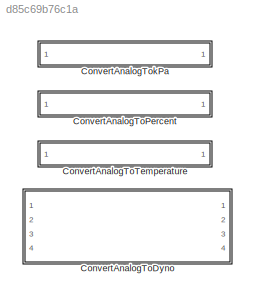
MODEL slx_d85c69b76c1a
KIND library
CONFIG AbsTol = auto
CONFIG EnableMultiTasking = off
CONFIG FixedStep = auto
CONFIG MaxStep = auto
CONFIG MinStep = auto
CONFIG RelTol = 1e-3
CONFIG SampleTimeConstraint = Unconstrained
CONFIG Solver = VariableStepAuto
CONFIG SolverName = VariableStepAuto
CONFIG StartTime = 0.0
CONFIG StopTime = 10.0
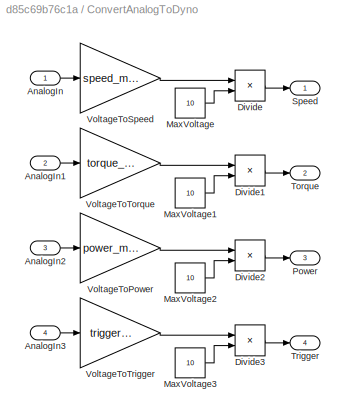
BLOCK [SubSystem] ConvertAnalogToDyno
  Ports = [4, 4]
  RequestExecContextInheritance = off
  Variant = off
BLOCK [Inport] ConvertAnalogToDyno/AnalogIn
  IconDisplay = Port number
BLOCK [Inport] ConvertAnalogToDyno/AnalogIn1
  IconDisplay = Port number
  Port = 2
BLOCK [Inport] ConvertAnalogToDyno/AnalogIn2
  IconDisplay = Port number
  Port = 3
BLOCK [Inport] ConvertAnalogToDyno/AnalogIn3
  IconDisplay = Port number
  Port = 4
BLOCK [Product] ConvertAnalogToDyno/Divide
  InputSameDT = off
  Inputs = */
  OutDataTypeStr = Inherit: Inherit via internal rule
  Ports = [2, 1]
  RndMeth = Floor
  SaturateOnIntegerOverflow = off
BLOCK [Product] ConvertAnalogToDyno/Divide1
  InputSameDT = off
  Inputs = */
  OutDataTypeStr = Inherit: Inherit via internal rule
  Ports = [2, 1]
  RndMeth = Floor
  SaturateOnIntegerOverflow = off
BLOCK [Product] ConvertAnalogToDyno/Divide2
  InputSameDT = off
  Inputs = */
  OutDataTypeStr = Inherit: Inherit via internal rule
  Ports = [2, 1]
  RndMeth = Floor
  SaturateOnIntegerOverflow = off
BLOCK [Product] ConvertAnalogToDyno/Divide3
  InputSameDT = off
  Inputs = */
  OutDataTypeStr = Inherit: Inherit via internal rule
  Ports = [2, 1]
  RndMeth = Floor
  SaturateOnIntegerOverflow = off
BLOCK [Constant] ConvertAnalogToDyno/MaxVoltage
  Value = 10
BLOCK [Constant] ConvertAnalogToDyno/MaxVoltage1
  Value = 10
BLOCK [Constant] ConvertAnalogToDyno/MaxVoltage2
  Value = 10
BLOCK [Constant] ConvertAnalogToDyno/MaxVoltage3
  Value = 10
BLOCK [Outport] ConvertAnalogToDyno/Power
  IconDisplay = Port number
  Port = 3
BLOCK [Outport] ConvertAnalogToDyno/Speed
  IconDisplay = Port number
BLOCK [Outport] ConvertAnalogToDyno/Torque
  IconDisplay = Port number
  Port = 2
BLOCK [Outport] ConvertAnalogToDyno/Trigger
  IconDisplay = Port number
  Port = 4
BLOCK [Gain] ConvertAnalogToDyno/VoltageToPower
  Gain = power_max
  OutDataTypeStr = Inherit: Inherit via internal rule
  ParamDataTypeStr = Inherit: Inherit via internal rule
  SaturateOnIntegerOverflow = off
BLOCK [Gain] ConvertAnalogToDyno/VoltageToSpeed
  Gain = speed_max
  OutDataTypeStr = Inherit: Inherit via internal rule
  ParamDataTypeStr = Inherit: Inherit via internal rule
  SaturateOnIntegerOverflow = off
BLOCK [Gain] ConvertAnalogToDyno/VoltageToTorque
  Gain = torque_max
  OutDataTypeStr = Inherit: Inherit via internal rule
  ParamDataTypeStr = Inherit: Inherit via internal rule
  SaturateOnIntegerOverflow = off
BLOCK [Gain] ConvertAnalogToDyno/VoltageToTrigger
  Gain = trigger_max
  OutDataTypeStr = Inherit: Inherit via internal rule
  ParamDataTypeStr = Inherit: Inherit via internal rule
  SaturateOnIntegerOverflow = off
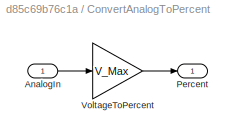
BLOCK [SubSystem] ConvertAnalogToPercent
  Ports = [1, 1]
  RequestExecContextInheritance = off
  Variant = off
BLOCK [Inport] ConvertAnalogToPercent/AnalogIn
  IconDisplay = Port number
BLOCK [Outport] ConvertAnalogToPercent/Percent
  IconDisplay = Port number
BLOCK [Gain] ConvertAnalogToPercent/VoltageToPercent
  Gain = V_Max
  OutDataTypeStr = Inherit: Inherit via internal rule
  ParamDataTypeStr = Inherit: Inherit via internal rule
  SaturateOnIntegerOverflow = off
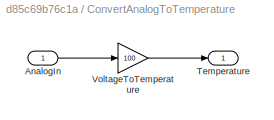
BLOCK [SubSystem] ConvertAnalogToTemperature
  Ports = [1, 1]
  RequestExecContextInheritance = off
  Variant = off
BLOCK [Inport] ConvertAnalogToTemperature/AnalogIn
  IconDisplay = Port number
BLOCK [Outport] ConvertAnalogToTemperature/Temperature
  IconDisplay = Port number
BLOCK [Gain] ConvertAnalogToTemperature/VoltageToTemperature
  Gain = 100
  OutDataTypeStr = Inherit: Inherit via internal rule
  ParamDataTypeStr = Inherit: Inherit via internal rule
  SaturateOnIntegerOverflow = off
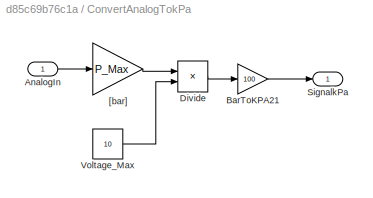
BLOCK [SubSystem] ConvertAnalogTokPa
  Ports = [1, 1]
  RequestExecContextInheritance = off
  Variant = off
BLOCK [Inport] ConvertAnalogTokPa/AnalogIn
  IconDisplay = Port number
BLOCK [Gain] ConvertAnalogTokPa/BarToKPA21
  Gain = 100
  OutDataTypeStr = Inherit: Inherit via internal rule
  ParamDataTypeStr = Inherit: Inherit via internal rule
  SaturateOnIntegerOverflow = off
BLOCK [Product] ConvertAnalogTokPa/Divide
  InputSameDT = off
  Inputs = */
  OutDataTypeStr = Inherit: Inherit via internal rule
  Ports = [2, 1]
  RndMeth = Floor
  SaturateOnIntegerOverflow = off
BLOCK [Outport] ConvertAnalogTokPa/SignalkPa
  IconDisplay = Port number
BLOCK [Constant] ConvertAnalogTokPa/Voltage_Max
  Value = 10
BLOCK [Gain] ConvertAnalogTokPa/[bar]
  Gain = P_Max
  OutDataTypeStr = Inherit: Inherit via internal rule
  ParamDataTypeStr = Inherit: Inherit via internal rule
  SaturateOnIntegerOverflow = off
LINE ConvertAnalogToDyno/AnalogIn1:1 -> ConvertAnalogToDyno/VoltageToTorque:1
LINE ConvertAnalogToDyno/AnalogIn2:1 -> ConvertAnalogToDyno/VoltageToPower:1
LINE ConvertAnalogToDyno/AnalogIn3:1 -> ConvertAnalogToDyno/VoltageToTrigger:1
LINE ConvertAnalogToDyno/AnalogIn:1 -> ConvertAnalogToDyno/VoltageToSpeed:1
LINE ConvertAnalogToDyno/Divide1:1 -> ConvertAnalogToDyno/Torque:1
LINE ConvertAnalogToDyno/Divide2:1 -> ConvertAnalogToDyno/Power:1
LINE ConvertAnalogToDyno/Divide3:1 -> ConvertAnalogToDyno/Trigger:1
LINE ConvertAnalogToDyno/Divide:1 -> ConvertAnalogToDyno/Speed:1
LINE ConvertAnalogToDyno/MaxVoltage1:1 -> ConvertAnalogToDyno/Divide1:2
LINE ConvertAnalogToDyno/MaxVoltage2:1 -> ConvertAnalogToDyno/Divide2:2
LINE ConvertAnalogToDyno/MaxVoltage3:1 -> ConvertAnalogToDyno/Divide3:2
LINE ConvertAnalogToDyno/MaxVoltage:1 -> ConvertAnalogToDyno/Divide:2
LINE ConvertAnalogToDyno/VoltageToPower:1 -> ConvertAnalogToDyno/Divide2:1
LINE ConvertAnalogToDyno/VoltageToSpeed:1 -> ConvertAnalogToDyno/Divide:1
LINE ConvertAnalogToDyno/VoltageToTorque:1 -> ConvertAnalogToDyno/Divide1:1
LINE ConvertAnalogToDyno/VoltageToTrigger:1 -> ConvertAnalogToDyno/Divide3:1
LINE ConvertAnalogToPercent/AnalogIn:1 -> ConvertAnalogToPercent/VoltageToPercent:1
LINE ConvertAnalogToPercent/VoltageToPercent:1 -> ConvertAnalogToPercent/Percent:1
LINE ConvertAnalogToTemperature/AnalogIn:1 -> ConvertAnalogToTemperature/VoltageToTemperature:1
LINE ConvertAnalogToTemperature/VoltageToTemperature:1 -> ConvertAnalogToTemperature/Temperature:1
LINE ConvertAnalogTokPa/AnalogIn:1 -> ConvertAnalogTokPa/[bar]:1
LINE ConvertAnalogTokPa/BarToKPA21:1 -> ConvertAnalogTokPa/SignalkPa:1
LINE ConvertAnalogTokPa/Divide:1 -> ConvertAnalogTokPa/BarToKPA21:1
LINE ConvertAnalogTokPa/Voltage_Max:1 -> ConvertAnalogTokPa/Divide:2
LINE ConvertAnalogTokPa/[bar]:1 -> ConvertAnalogTokPa/Divide:1
